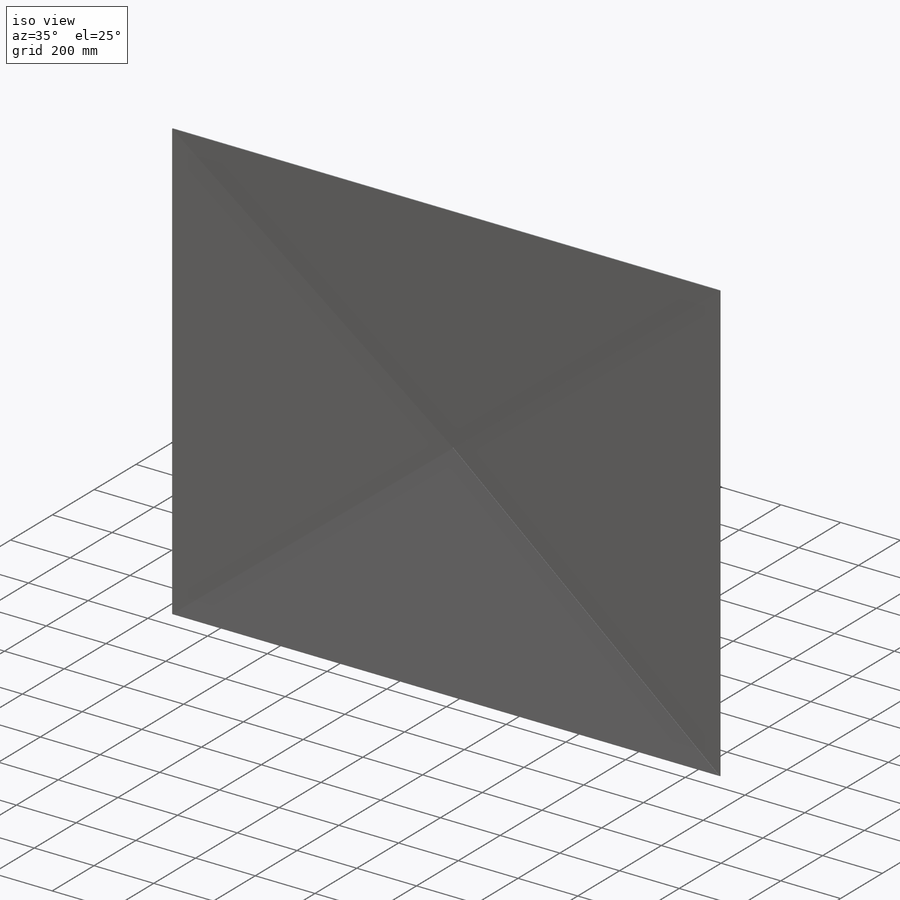
[diagram: iso view]
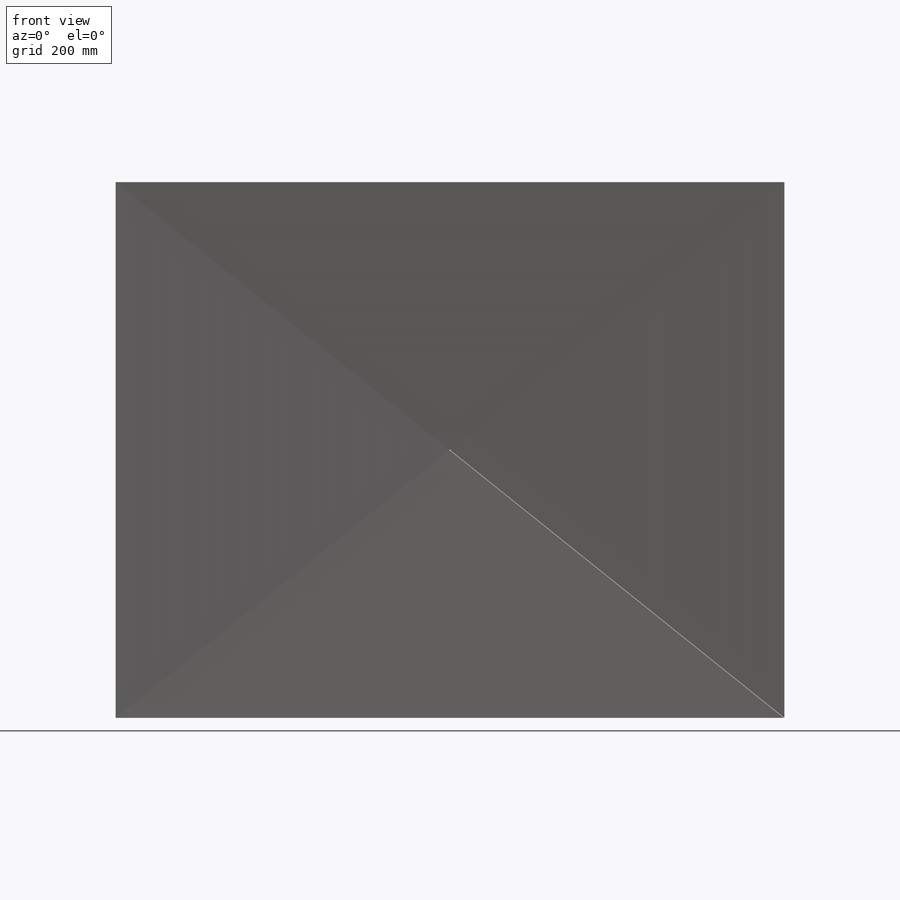
[diagram: front view]
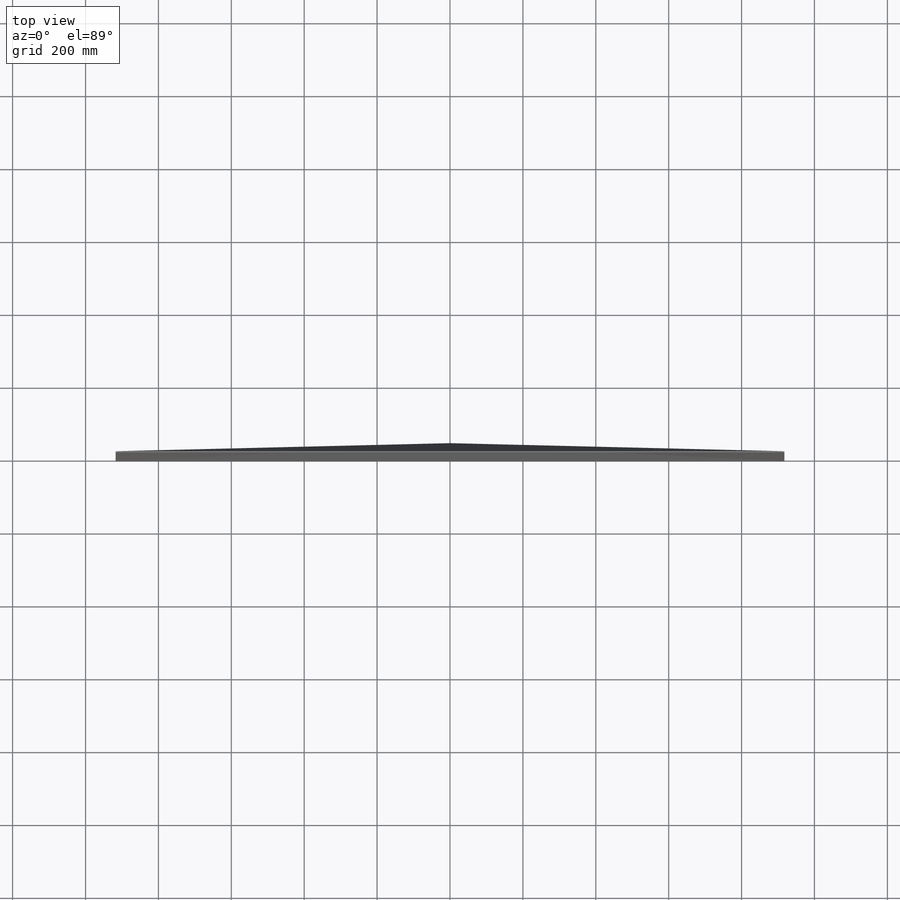
[diagram: top view]
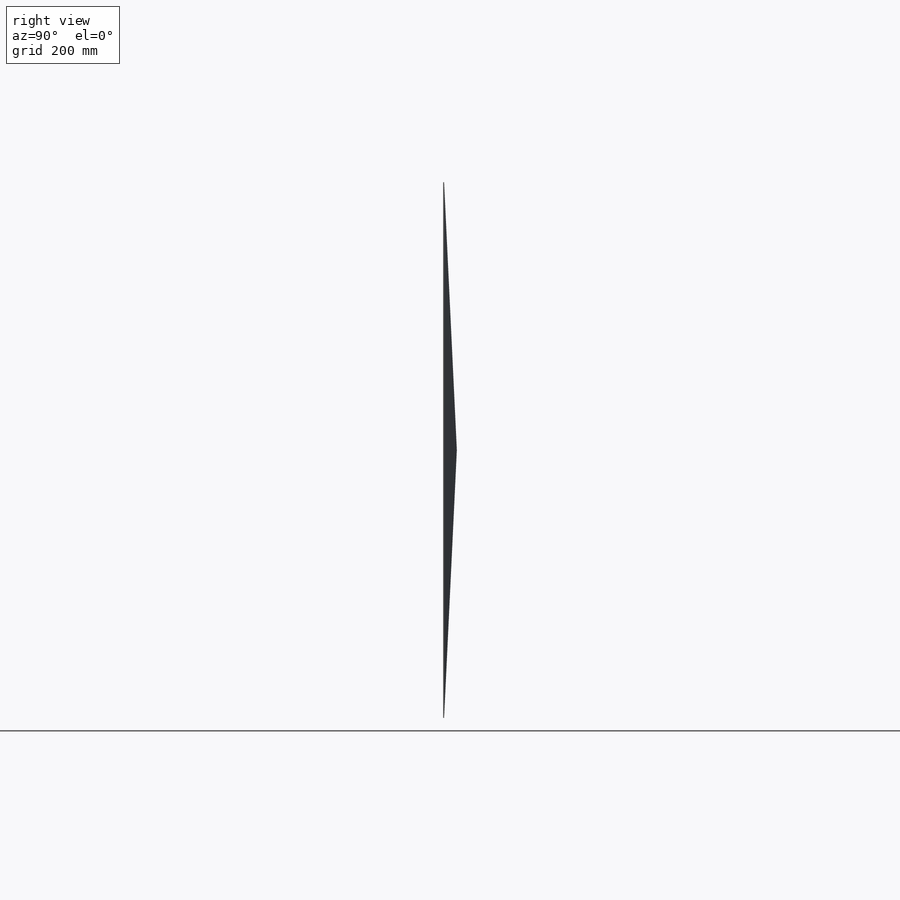
[diagram: right view]
SOLIDWORKS PART (.sldprt)
format: sldprt  version: not decoded by parser v0  size: 291,840 bytes
history: native  units: mm
features: sketch x9, plane x4, mirror x2, material x1, sheet_metal_op x1 + 3 further entries (+9 scaffold rows collapsed; 1 parser-record rows omitted)
feature tree (30):
  scaffold x9  (default folders/planes/origin — collapsed)
  material  "Material <nicht festgelegt>"
  plane  "Ebene vorne"
  plane  "Ebene oben"
  plane  "Ebene rechts"
  sketch  "Skizze1"  dims[D1=735.0mm D2=1835.0mm]
  plane  "Ebene1"
  sketch  "Skizze2"  dims[D1=35.0mm]
  sketch  "3D-Skizze1"
  mirror  "Spiegeln1"
  sketch  "Skizze4"
  sketch  "Spiegeln2"
  sketch  "Skizze10"  dims[c1.D1=~1176.317027mm c2.D1=~0.077458deg c3.D1=~6283.185307mm c3.D2=1.0mm]
  sketch  "Skizze13"  dims[D1=~0.459803mm]
  mirror  "Oberfläche-Trimmen2"
  sheet_metal_op  "Blech14"  Biegung-Winkel4=0 Biegung-Winkel5=0
  "Abwicklung3"
  sketch  "Biegung-Linien3"
  sketch  "Rahmen3"
  "Abwickeln-<Biegung-Winkel4>1"
  "Abwickeln-<Biegung-Winkel5>1"
  parser-record x1  (decoder bookkeeping rows leaked as tree rows — omitted from the tree; the rows remain in map.json)
decode coverage: 5 of 12 modeling features carry decoded parameters; 3 rows unclassified (native names shown)
note: ~ marks probable driven/reference dimensions
note: suppression state not decoded; provenance and decode notes live in map.json
